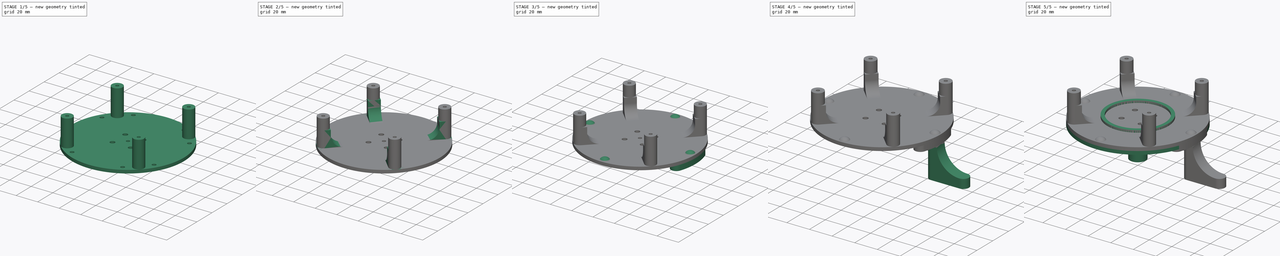
[diagram: build sequence overview — one tinted view per stage of 5, left to right]
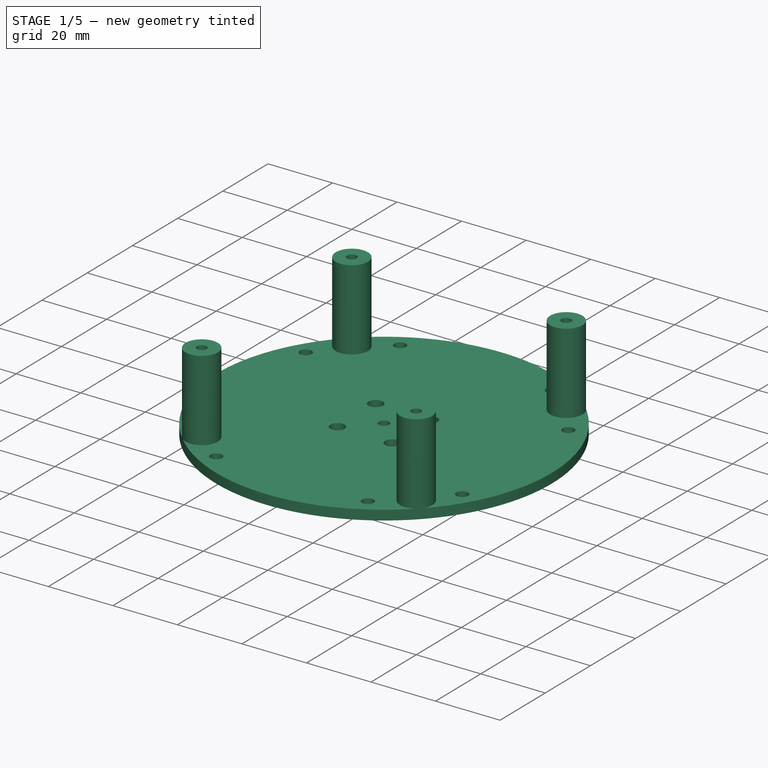
[diagram: stage 1 of 5 — iso view after this stage's code; geometry added in this stage tinted green]
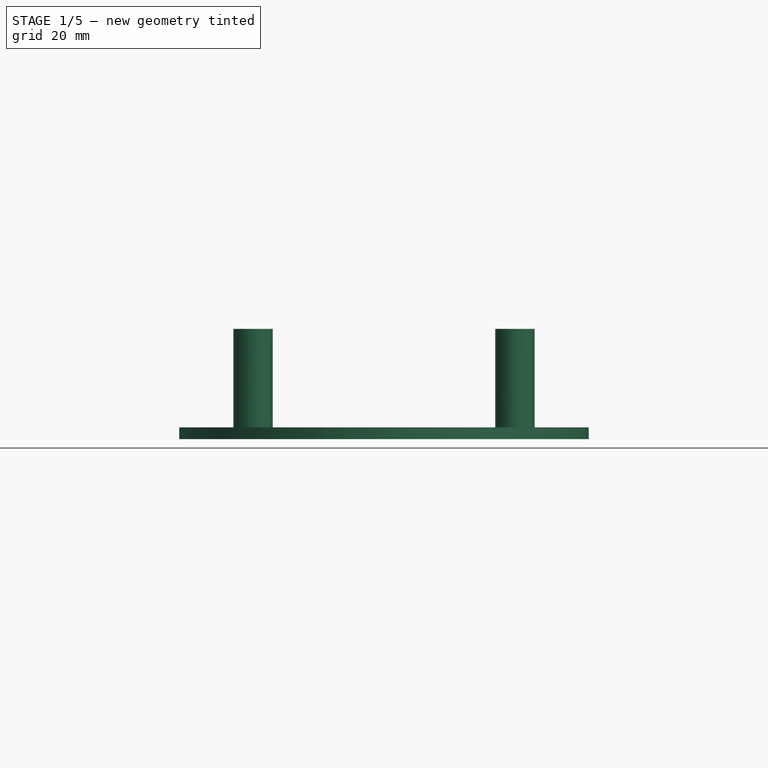
[diagram: stage 1 of 5 — front view after this stage's code; geometry added in this stage tinted green]
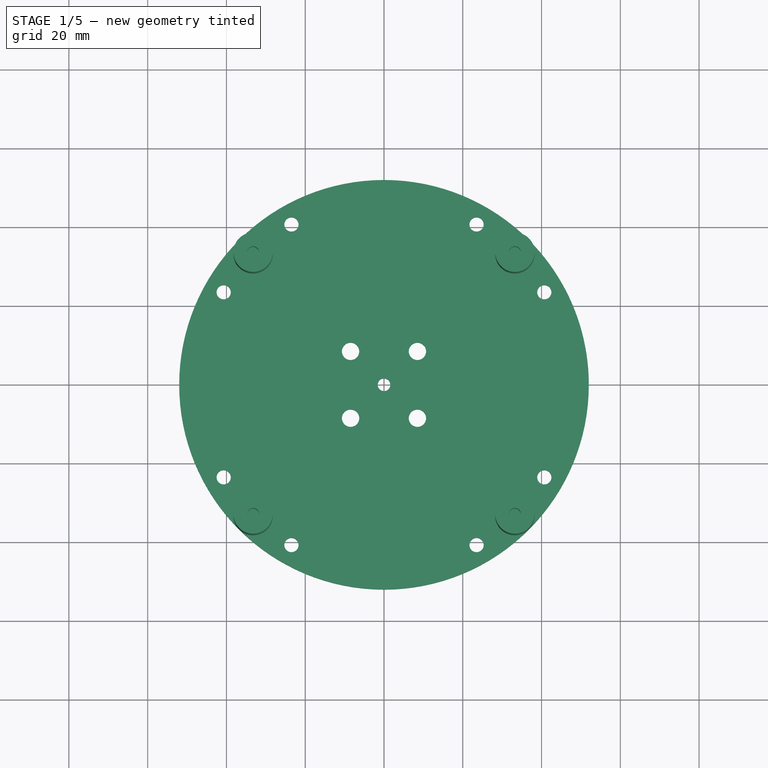
[diagram: stage 1 of 5 — top view after this stage's code; geometry added in this stage tinted green]
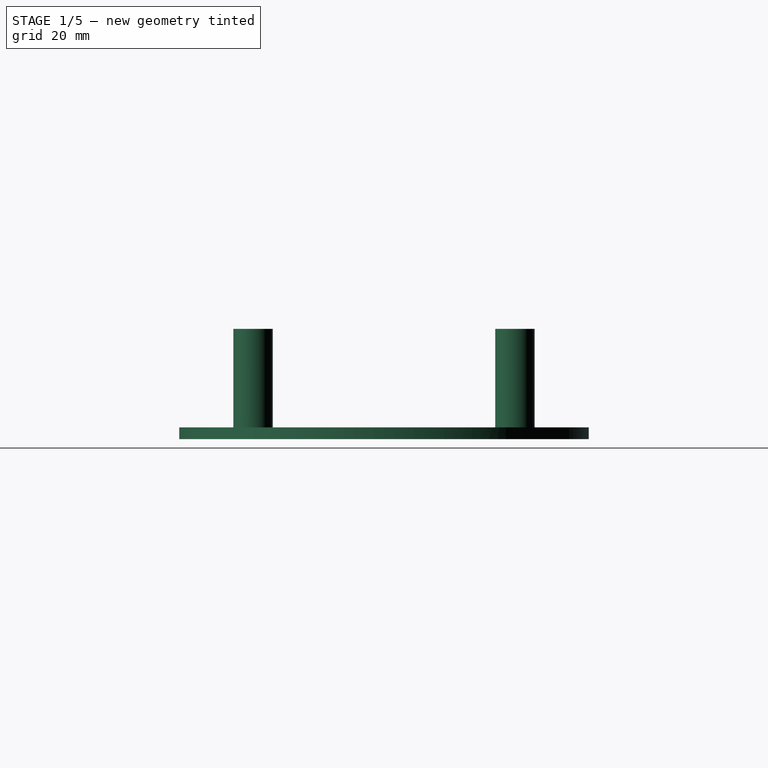
[diagram: stage 1 of 5 — right view after this stage's code; geometry added in this stage tinted green]
FCSTD DOCUMENT  (FreeCAD 1.0R39109 (Git))
Label: horiz
License: All rights reserved
LicenseURL: http://en.wikipedia.org/wiki/All_rights_reserved
objects: Sketcher::SketchObject×17, PartDesign::Pad×13, PartDesign::Body×5, PartDesign::Pocket×4, PartDesign::AdditiveSphere×4, App::Link×3
note: 102 computed .brp shape members not serialized (recipe doc carries the construction recipe); baked Part::Feature solids carry a one-line shape summary decoded from their .brp

FEATURE [PartDesign::Body] Body  label="Wheel"
  AllowCompound = false
  Group = -> [Pad001,Sketch001,Sketch,Pad,Sketch002,Pocket]
  Origin = -> Origin
  Placement = pos=(-1.14e-14,-1.2e-14,59) rot=(0,0,-1;3.14159rad)
  Tip = -> Pocket
FEATURE [Sketcher::SketchObject] Sketch003
  ArcFitTolerance = 1e-06
  AttachmentSupport = -> [XY_Plane001]
  FullyConstrained = true
  MakeInternals = false
  MapMode = 5
  sketch-geometry (11):
    g0: Circle CenterX=0 CenterY=0 CenterZ=0 NormalX=0 NormalY=0 NormalZ=1 AngleXU=0 Radius=52
    g1: Circle CenterX=0 CenterY=0 CenterZ=0 NormalX=0 NormalY=0 NormalZ=1 AngleXU=0 Radius=1.6
    g2: LineSegment [constr] StartX=-8.48528 StartY=8.48528 StartZ=0 EndX=-8.48528 EndY=-8.48528 EndZ=0
    g3: LineSegment [constr] StartX=-8.48528 StartY=-8.48528 StartZ=0 EndX=8.48528 EndY=-8.48528 EndZ=0
    g4: LineSegment [constr] StartX=8.48528 StartY=-8.48528 StartZ=0 EndX=8.48528 EndY=8.48528 EndZ=0
    g5: LineSegment [constr] StartX=8.48528 StartY=8.48528 StartZ=0 EndX=-8.48528 EndY=8.48528 EndZ=0
    g6: Circle [constr] CenterX=0 CenterY=0 CenterZ=0 NormalX=0 NormalY=0 NormalZ=1 AngleXU=0 Radius=12
    g7: Circle CenterX=8.48528 CenterY=8.48528 CenterZ=0 NormalX=0 NormalY=0 NormalZ=1 AngleXU=0 Radius=2.2
    g8: Circle CenterX=-8.48528 CenterY=8.48528 CenterZ=0 NormalX=0 NormalY=0 NormalZ=1 AngleXU=0 Radius=2.2
    g9: Circle CenterX=-8.48528 CenterY=-8.48528 CenterZ=0 NormalX=0 NormalY=0 NormalZ=1 AngleXU=0 Radius=2.2
    g10: Circle CenterX=8.48528 CenterY=-8.48528 CenterZ=0 NormalX=0 NormalY=0 NormalZ=1 AngleXU=0 Radius=2.2
  constraints (26):
    c: Coincident(g0,g-1)
    c: Radius(g0) = 52
    c: Coincident(g1,g0)
    c: Radius(g1) = 1.6
    c: Coincident(g2,g3)
    c: Coincident(g3,g4)
    c: Coincident(g4,g5)
    c: Coincident(g5,g2)
    c: Equal(g2,g3)
    c: Equal(g2,g4)
    c: Equal(g2,g5)
    c: PointOnObject(g2,g6)
    c: PointOnObject(g3,g6)
    c: PointOnObject(g4,g6)
    c: PointOnObject(g5,g6)
    c: Coincident(g6,g0)
    c: Radius(g6) = 12
    c: Parallel(g5,g-1)
    c: Coincident(g7,g4)
    c: Coincident(g8,g2)
    c: Coincident(g9,g2)
    c: Coincident(g10,g3)
    c: Equal(g10,g7)
    c: Equal(g7,g8)
    c: Equal(g8,g9)
    c: Radius(g7) = 2.2
FEATURE [PartDesign::Pad] Pad002
  Direction = (0,0,1)
  Length = 3
  Length2 = 10
  Profile = -> Sketch003
  ReferenceAxis = -> Sketch003 [N_Axis]
  Suppressed = false
  Type = 0
FEATURE [Sketcher::SketchObject] Sketch005
  ArcFitTolerance = 1e-06
  AttachmentSupport = -> [XY_Plane001]
  FullyConstrained = true
  MakeInternals = false
  MapMode = 5
  sketch-geometry (9):
    g0: LineSegment [constr] StartX=33.234 StartY=33.234 StartZ=0 EndX=-33.234 EndY=33.234 EndZ=0
    g1: LineSegment [constr] StartX=-33.234 StartY=33.234 StartZ=0 EndX=-33.234 EndY=-33.234 EndZ=0
    g2: LineSegment [constr] StartX=-33.234 StartY=-33.234 StartZ=0 EndX=33.234 EndY=-33.234 EndZ=0
    g3: LineSegment [constr] StartX=33.234 StartY=-33.234 StartZ=0 EndX=33.234 EndY=33.234 EndZ=0
    g4: Circle [constr] CenterX=-2e-16 CenterY=0 CenterZ=0 NormalX=0 NormalY=0 NormalZ=1 AngleXU=0 Radius=47
    g5: Circle CenterX=33.234 CenterY=33.234 CenterZ=0 NormalX=0 NormalY=0 NormalZ=1 AngleXU=0 Radius=5
    g6: Circle CenterX=-33.234 CenterY=33.234 CenterZ=0 NormalX=0 NormalY=0 NormalZ=1 AngleXU=0 Radius=5
    g7: Circle CenterX=-33.234 CenterY=-33.234 CenterZ=0 NormalX=0 NormalY=0 NormalZ=1 AngleXU=0 Radius=5
    g8: Circle CenterX=33.234 CenterY=-33.234 CenterZ=0 NormalX=0 NormalY=0 NormalZ=1 AngleXU=0 Radius=5
  constraints (22):
    c: Coincident(g0,g1)
    c: Coincident(g1,g2)
    c: Coincident(g2,g3)
    c: Coincident(g3,g0)
    c: Equal(g0,g1)
    c: Equal(g0,g2)
    c: Equal(g0,g3)
    c: PointOnObject(g0,g4)
    c: PointOnObject(g1,g4)
    c: PointOnObject(g2,g4)
    c: PointOnObject(g3,g4)
    c: Coincident(g4,g-1)
    c: Radius(g4) = 47
    c: Parallel(g0,g-1)
    c: Coincident(g5,g0)
    c: Coincident(g6,g0)
    c: Coincident(g7,g1)
    c: Coincident(g8,g2)
    c: Equal(g8,g5)
    c: Equal(g5,g6)
    c: Equal(g6,g7)
    c: Radius(g6) = 5
FEATURE [PartDesign::Pad] Pad004
  BaseFeature = -> Pad002
  Direction = (0,0,1)
  Length = 28
  Length2 = 10
  Profile = -> Sketch005
  ReferenceAxis = -> Sketch005 [N_Axis]
  Suppressed = false
  Type = 0
FEATURE [Sketcher::SketchObject] Sketch007
  ArcFitTolerance = 1e-06
  AttachmentOffset = pos=(0,0,28) rot=(0,0,1;0rad)
  AttachmentSupport = -> [XY_Plane001]
  FullyConstrained = true
  MakeInternals = false
  MapMode = 5
  Placement = pos=(0,0,28) rot=(0,0,1;0rad)
  sketch-geometry (9):
    g0: LineSegment [constr] StartX=-33.234 StartY=33.234 StartZ=0 EndX=-33.234 EndY=-33.234 EndZ=0
    g1: LineSegment [constr] StartX=-33.234 StartY=-33.234 StartZ=0 EndX=33.234 EndY=-33.234 EndZ=0
    g2: LineSegment [constr] StartX=33.234 StartY=-33.234 StartZ=0 EndX=33.234 EndY=33.234 EndZ=0
    g3: LineSegment [constr] StartX=33.234 StartY=33.234 StartZ=0 EndX=-33.234 EndY=33.234 EndZ=0
    g4: Circle [constr] CenterX=0 CenterY=0 CenterZ=0 NormalX=0 NormalY=0 NormalZ=1 AngleXU=0 Radius=47
    g5: Circle CenterX=33.234 CenterY=33.234 CenterZ=0 NormalX=0 NormalY=0 NormalZ=1 AngleXU=0 Radius=1.5
    g6: Circle CenterX=-33.234 CenterY=33.234 CenterZ=0 NormalX=0 NormalY=0 NormalZ=1 AngleXU=0 Radius=1.5
    g7: Circle CenterX=-33.234 CenterY=-33.234 CenterZ=0 NormalX=0 NormalY=0 NormalZ=1 AngleXU=0 Radius=1.5
    g8: Circle CenterX=33.234 CenterY=-33.234 CenterZ=0 NormalX=0 NormalY=0 NormalZ=1 AngleXU=0 Radius=1.5
  constraints (22):
    c: Coincident(g0,g1)
    c: Coincident(g1,g2)
    c: Coincident(g2,g3)
    c: Coincident(g3,g0)
    c: Equal(g0,g1)
    c: Equal(g0,g2)
    c: Equal(g0,g3)
    c: PointOnObject(g0,g4)
    c: PointOnObject(g1,g4)
    c: PointOnObject(g2,g4)
    c: PointOnObject(g3,g4)
    c: Coincident(g4,g-1)
    c: Radius(g4) = 47
    c: Parallel(g3,g-1)
    c: Coincident(g5,g2)
    c: Coincident(g6,g0)
    c: Coincident(g7,g0)
    c: Coincident(g8,g1)
    c: Equal(g8,g5)
    c: Equal(g5,g6)
    c: Equal(g6,g7)
    c: Radius(g6) = 1.5
FEATURE [PartDesign::Pocket] Pocket002
  BaseFeature = -> Pad004
  Direction = (0,0,-1)
  Length = 10
  Length2 = 5
  Profile = -> Sketch007
  ReferenceAxis = -> Sketch007 [N_Axis]
  Suppressed = false
  Type = 0
FEATURE [Sketcher::SketchObject] Sketch011
  ArcFitTolerance = 1e-06
  AttachmentSupport = -> [XY_Plane001]
  FullyConstrained = true
  MakeInternals = false
  MapMode = 5
  sketch-geometry (17):
    g0: LineSegment [constr] StartX=-23.5 StartY=-40.7032 StartZ=0 EndX=40.7032 EndY=-23.5 EndZ=0
    g1: LineSegment [constr] StartX=40.7032 StartY=-23.5 StartZ=0 EndX=23.5 EndY=40.7032 EndZ=0
    g2: LineSegment [constr] StartX=23.5 StartY=40.7032 StartZ=0 EndX=-40.7032 EndY=23.5 EndZ=0
    g3: LineSegment [constr] StartX=-40.7032 StartY=23.5 StartZ=0 EndX=-23.5 EndY=-40.7032 EndZ=0
    g4: Circle [constr] CenterX=0 CenterY=0 CenterZ=0 NormalX=0 NormalY=0 NormalZ=1 AngleXU=0 Radius=47
    g5: Circle CenterX=23.5 CenterY=40.7032 CenterZ=0 NormalX=0 NormalY=0 NormalZ=1 AngleXU=0 Radius=1.8
    g6: Circle CenterX=-40.7032 CenterY=23.5 CenterZ=0 NormalX=0 NormalY=0 NormalZ=1 AngleXU=0 Radius=1.8
    g7: Circle CenterX=-23.5 CenterY=-40.7032 CenterZ=0 NormalX=0 NormalY=0 NormalZ=1 AngleXU=0 Radius=1.8
    g8: Circle CenterX=40.7032 CenterY=-23.5 CenterZ=0 NormalX=0 NormalY=0 NormalZ=1 AngleXU=0 Radius=1.8
    g9: LineSegment [constr] StartX=-23.5 StartY=40.7032 StartZ=0 EndX=40.7032 EndY=23.5 EndZ=0
    g10: LineSegment [constr] StartX=40.7032 StartY=23.5 StartZ=0 EndX=23.5 EndY=-40.7032 EndZ=0
    g11: LineSegment [constr] StartX=23.5 StartY=-40.7032 StartZ=0 EndX=-40.7032 EndY=-23.5 EndZ=0
    g12: LineSegment [constr] StartX=-40.7032 StartY=-23.5 StartZ=0 EndX=-23.5 EndY=40.7032 EndZ=0
    g13: Circle CenterX=-23.5 CenterY=40.7032 CenterZ=0 NormalX=0 NormalY=0 NormalZ=1 AngleXU=0 Radius=1.8
    g14: Circle CenterX=40.7032 CenterY=23.5 CenterZ=0 NormalX=0 NormalY=0 NormalZ=1 AngleXU=0 Radius=1.8
    g15: Circle CenterX=23.5 CenterY=-40.7032 CenterZ=0 NormalX=0 NormalY=0 NormalZ=1 AngleXU=0 Radius=1.8
    g16: Circle CenterX=-40.7032 CenterY=-23.5 CenterZ=0 NormalX=0 NormalY=0 NormalZ=1 AngleXU=0 Radius=1.8
  constraints (42):
    c: Coincident(g0,g1)
    c: Coincident(g1,g2)
    c: Coincident(g2,g3)
    c: Coincident(g3,g0)
    c: Equal(g0,g1)
    c: Equal(g0,g2)
    c: Equal(g0,g3)
    c: PointOnObject(g0,g4)
    c: PointOnObject(g1,g4)
    c: PointOnObject(g2,g4)
    c: PointOnObject(g3,g4)
    c: Coincident(g4,g-1)
    c: Radius(g4) = 47
    c: Coincident(g5,g1)
    c: Coincident(g6,g2)
    c: Coincident(g7,g0)
    c: Coincident(g8,g0)
    c: Equal(g8,g7)
    c: Equal(g7,g6)
    c: Equal(g6,g5)
    c: Radius(g5) = 1.8
    c: Angle(g-1,g0) = 0.261799
    c: PointOnObject(g9,g4)
    c: PointOnObject(g9,g4)
    c: Coincident(g9,g10)
    c: PointOnObject(g10,g4)
    c: Coincident(g10,g11)
    c: PointOnObject(g11,g4)
    c: Coincident(g11,g12)
    c: Coincident(g12,g9)
    c: Equal(g9,g10)
    c: Angle(g11,g12) = 1.5708
    c: Angle(g10,g11) = 1.5708
    c: Angle(g10,g-2) = 0.261799
    c: Coincident(g13,g9)
    c: Coincident(g14,g9)
    c: Coincident(g15,g10)
    c: Coincident(g16,g11)
    c: Equal(g16,g15)
    c: Equal(g15,g14)
    c: Equal(g14,g13)
    c: Equal(g13,g5)
FEATURE [PartDesign::Pocket] Pocket004
  BaseFeature = -> Pocket002
  Direction = (0,0,-1)
  Length = 5
  Length2 = 5
  Profile = -> Sketch011
  ReferenceAxis = -> Sketch011 [N_Axis]
  Reversed = true
  Suppressed = false
  Type = 0
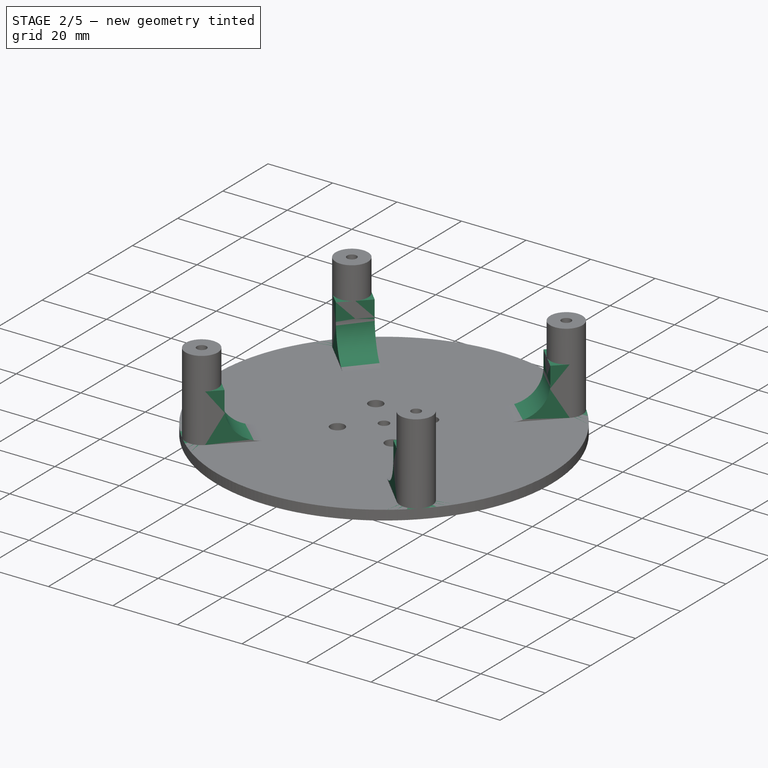
[diagram: stage 2 of 5 — iso view after this stage's code; geometry added in this stage tinted green]
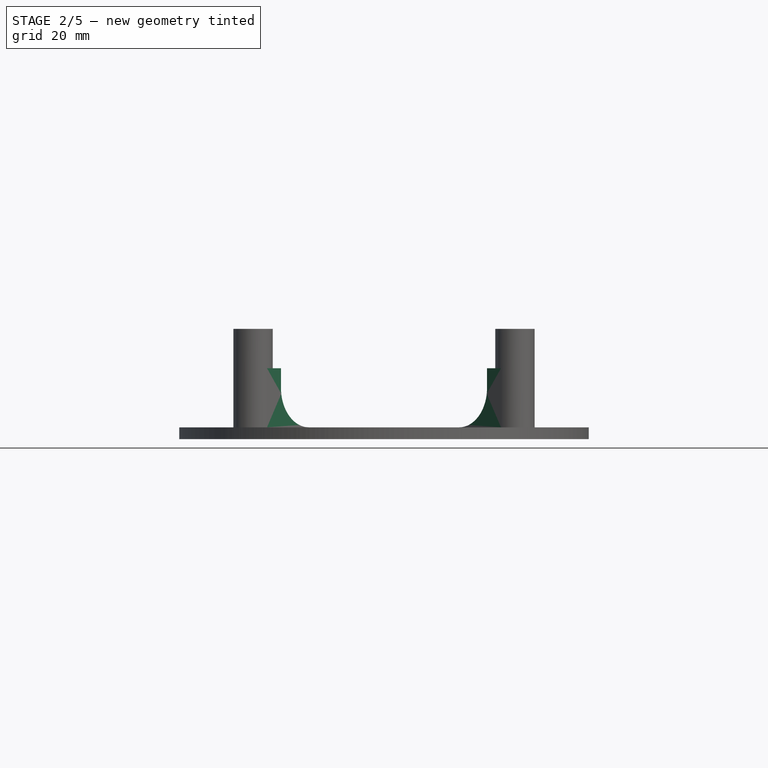
[diagram: stage 2 of 5 — front view after this stage's code; geometry added in this stage tinted green]
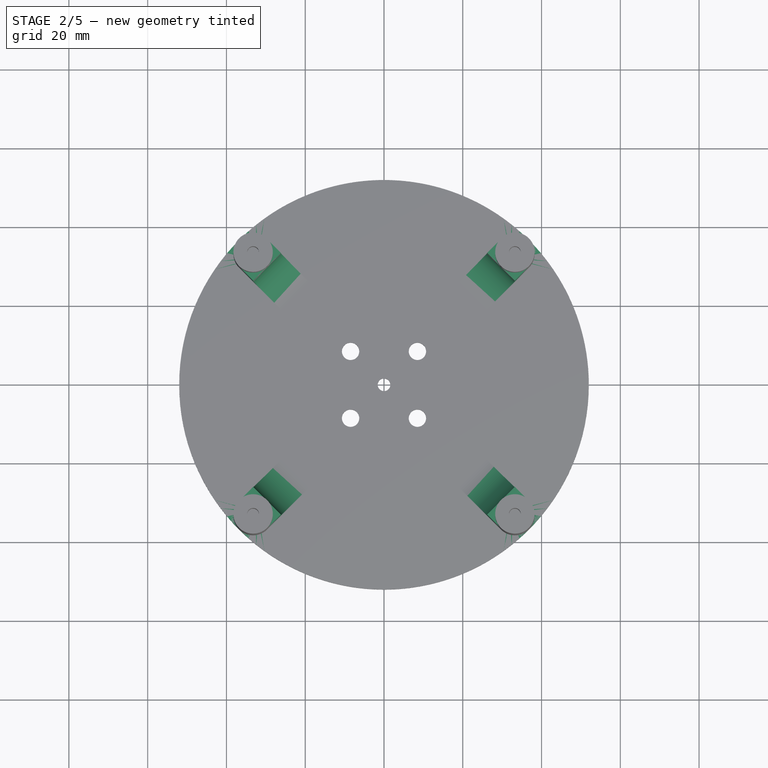
[diagram: stage 2 of 5 — top view after this stage's code; geometry added in this stage tinted green]
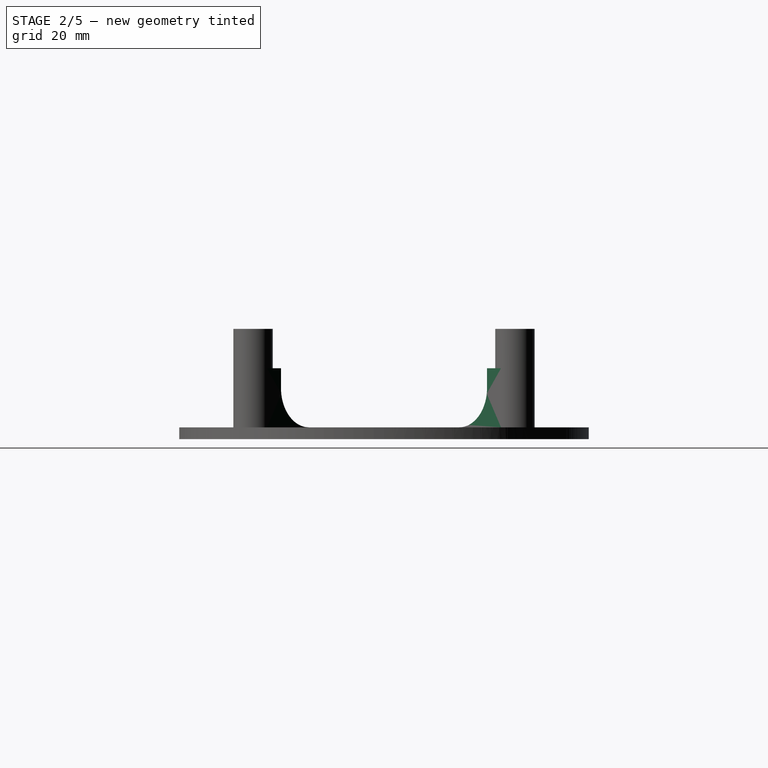
[diagram: stage 2 of 5 — right view after this stage's code; geometry added in this stage tinted green]
FEATURE [Sketcher::SketchObject] Sketch004
  ArcFitTolerance = 1e-06
  AttachmentSupport = -> [XY_Plane002]
  FullyConstrained = true
  MakeInternals = false
  MapMode = 5
  sketch-geometry (11):
    g0: Circle CenterX=0 CenterY=0 CenterZ=0 NormalX=0 NormalY=0 NormalZ=1 AngleXU=0 Radius=52
    g1: Circle CenterX=0 CenterY=0 CenterZ=0 NormalX=0 NormalY=0 NormalZ=1 AngleXU=0 Radius=1.6
    g2: LineSegment [constr] StartX=-8.48528 StartY=8.48528 StartZ=0 EndX=-8.48528 EndY=-8.48528 EndZ=0
    g3: LineSegment [constr] StartX=-8.48528 StartY=-8.48528 StartZ=0 EndX=8.48528 EndY=-8.48528 EndZ=0
    g4: LineSegment [constr] StartX=8.48528 StartY=-8.48528 StartZ=0 EndX=8.48528 EndY=8.48528 EndZ=0
    g5: LineSegment [constr] StartX=8.48528 StartY=8.48528 StartZ=0 EndX=-8.48528 EndY=8.48528 EndZ=0
    g6: Circle [constr] CenterX=0 CenterY=0 CenterZ=0 NormalX=0 NormalY=0 NormalZ=1 AngleXU=0 Radius=12
    g7: Circle CenterX=8.48528 CenterY=8.48528 CenterZ=0 NormalX=0 NormalY=0 NormalZ=1 AngleXU=0 Radius=2.2
    g8: Circle CenterX=-8.48528 CenterY=8.48528 CenterZ=0 NormalX=0 NormalY=0 NormalZ=1 AngleXU=0 Radius=2.2
    g9: Circle CenterX=-8.48528 CenterY=-8.48528 CenterZ=0 NormalX=0 NormalY=0 NormalZ=1 AngleXU=0 Radius=2.2
    g10: Circle CenterX=8.48528 CenterY=-8.48528 CenterZ=0 NormalX=0 NormalY=0 NormalZ=1 AngleXU=0 Radius=2.2
  constraints (26):
    c: Coincident(g0,g-1)
    c: Radius(g0) = 52
    c: Coincident(g1,g0)
    c: Radius(g1) = 1.6
    c: Coincident(g2,g3)
    c: Coincident(g3,g4)
    c: Coincident(g4,g5)
    c: Coincident(g5,g2)
    c: Equal(g2,g3)
    c: Equal(g2,g4)
    c: Equal(g2,g5)
    c: PointOnObject(g2,g6)
    c: PointOnObject(g3,g6)
    c: PointOnObject(g4,g6)
    c: PointOnObject(g5,g6)
    c: Coincident(g6,g0)
    c: Radius(g6) = 12
    c: Parallel(g5,g-1)
    c: Coincident(g7,g4)
    c: Coincident(g8,g2)
    c: Coincident(g9,g2)
    c: Coincident(g10,g3)
    c: Equal(g10,g7)
    c: Equal(g7,g8)
    c: Equal(g8,g9)
    c: Radius(g7) = 2.2
FEATURE [PartDesign::Pad] Pad003
  Direction = (0,0,1)
  Length = 3
  Length2 = 10
  Profile = -> Sketch004
  ReferenceAxis = -> Sketch004 [N_Axis]
  Suppressed = false
  Type = 0
FEATURE [Sketcher::SketchObject] Sketch006
  ArcFitTolerance = 1e-06
  AttachmentSupport = -> [XY_Plane002]
  FullyConstrained = true
  MakeInternals = false
  MapMode = 5
  sketch-geometry (9):
    g0: LineSegment [constr] StartX=33.234 StartY=-33.234 StartZ=0 EndX=33.234 EndY=33.234 EndZ=0
    g1: LineSegment [constr] StartX=33.234 StartY=33.234 StartZ=0 EndX=-33.234 EndY=33.234 EndZ=0
    g2: LineSegment [constr] StartX=-33.234 StartY=33.234 StartZ=0 EndX=-33.234 EndY=-33.234 EndZ=0
    g3: LineSegment [constr] StartX=-33.234 StartY=-33.234 StartZ=0 EndX=33.234 EndY=-33.234 EndZ=0
    g4: Circle [constr] CenterX=0 CenterY=0 CenterZ=0 NormalX=0 NormalY=0 NormalZ=1 AngleXU=0 Radius=47
    g5: Circle CenterX=-33.234 CenterY=33.234 CenterZ=0 NormalX=0 NormalY=0 NormalZ=1 AngleXU=0 Radius=1.8
    g6: Circle CenterX=-33.234 CenterY=-33.234 CenterZ=0 NormalX=0 NormalY=0 NormalZ=1 AngleXU=0 Radius=1.8
    g7: Circle CenterX=33.234 CenterY=-33.234 CenterZ=0 NormalX=0 NormalY=0 NormalZ=1 AngleXU=0 Radius=1.8
    g8: Circle CenterX=33.234 CenterY=33.234 CenterZ=0 NormalX=0 NormalY=0 NormalZ=1 AngleXU=0 Radius=1.8
  constraints (22):
    c: Coincident(g0,g1)
    c: Coincident(g1,g2)
    c: Coincident(g2,g3)
    c: Coincident(g3,g0)
    c: Equal(g0,g1)
    c: Equal(g0,g2)
    c: Equal(g0,g3)
    c: PointOnObject(g0,g4)
    c: PointOnObject(g1,g4)
    c: PointOnObject(g2,g4)
    c: PointOnObject(g3,g4)
    c: Coincident(g4,g-1)
    c: Radius(g4) = 47
    c: Parallel(g1,g-1)
    c: Coincident(g5,g1)
    c: Coincident(g6,g2)
    c: Coincident(g7,g0)
    c: Coincident(g8,g0)
    c: Equal(g8,g7)
    c: Equal(g7,g6)
    c: Equal(g6,g5)
    c: Radius(g5) = 1.8
FEATURE [PartDesign::Pocket] Pocket001
  BaseFeature = -> Pad003
  Direction = (0,0,-1)
  Length = 5
  Length2 = 5
  Midplane = true
  Profile = -> Sketch006
  ReferenceAxis = -> Sketch006 [N_Axis]
  Suppressed = false
  Type = 1
FEATURE [PartDesign::Body] Body002  label="Top"
  AllowCompound = false
  Group = -> [Sketch004,Pad003,Sketch006,Pocket001,Sphere,Sphere001,Sphere002,Sphere003]
  Origin = -> Origin002
  Placement = pos=(-6.2e-15,-9.9e-15,51) rot=(0,0,-1;3.14159rad)
  Tip = -> Sphere003
FEATURE [Sketcher::SketchObject] Sketch018
  ArcFitTolerance = 1e-06
  AttachmentOffset = pos=(0,0,0) rot=(0,1,0;0.785398rad)
  AttachmentSupport = -> [YZ_Plane001]
  FullyConstrained = true
  MakeInternals = false
  MapMode = 5
  Placement = pos=(0,0,0) rot=(0.281085,0.678598,0.678598;2.59356rad)
  sketch-geometry (10):
    g0: LineSegment StartX=-47 StartY=18 StartZ=0 EndX=-47 EndY=3 EndZ=0
    g1: LineSegment StartX=-47 StartY=3 StartZ=0 EndX=-32 EndY=3 EndZ=0
    g2: LineSegment StartX=-42 StartY=13 StartZ=0 EndX=-42 EndY=18 EndZ=0
    g3: LineSegment StartX=-42 StartY=18 StartZ=0 EndX=-47 EndY=18 EndZ=0
    g4: ArcOfCircle CenterX=-32 CenterY=13 CenterZ=0 NormalX=0 NormalY=0 NormalZ=1 AngleXU=0 Radius=10 StartAngle=3.14159 EndAngle=4.71239
    g5: LineSegment StartX=47 StartY=18 StartZ=0 EndX=47 EndY=3 EndZ=0
    g6: LineSegment StartX=47 StartY=3 StartZ=0 EndX=32 EndY=3 EndZ=0
    g7: LineSegment StartX=42 StartY=13 StartZ=0 EndX=42 EndY=18 EndZ=0
    g8: LineSegment StartX=42 StartY=18 StartZ=0 EndX=47 EndY=18 EndZ=0
    g9: ArcOfCircle CenterX=32 CenterY=13 CenterZ=0 NormalX=0 NormalY=0 NormalZ=1 AngleXU=0 Radius=10 StartAngle=4.71239 EndAngle=6.28319
  constraints (27):
    c: Coincident(g0,g1)
    c: Coincident(g2,g3)
    c: Coincident(g3,g0)
    c: Vertical(g0)
    c: Vertical(g2)
    c: Horizontal(g1)
    c: Horizontal(g3)
    c: Coincident(g4,g2)
    c: Coincident(g4,g1)
    c: DistanceX(g1,g4) = 0
    c: DistanceY(g0) = 3
    c: DistanceX(g0,g-1) = 47
    c: DistanceX(g3,g3) = 5
    c: DistanceY(g0,g0) = 15
    c: DistanceY(g2,g4) = 0
    c: Radius(g4) = 10
    c: Symmetric(g0,g5,g-2)
    c: Symmetric(g0,g5,g-2)
    c: Symmetric(g1,g6,g-2)
    c: Symmetric(g1,g6,g-2)
    c: Symmetric(g2,g7,g-2)
    c: Symmetric(g2,g7,g-2)
    c: Symmetric(g3,g8,g-2)
    c: Symmetric(g3,g8,g-2)
    c: Equal(g4,g9)
    c: Symmetric(g4,g9,g-2)
    c: Symmetric(g4,g9,g-2)
FEATURE [PartDesign::Pad] Pad011
  BaseFeature = -> Pocket004
  Direction = (0.707107,0.707107,0)
  Length = 10
  Length2 = 10
  Midplane = true
  Profile = -> Sketch018
  ReferenceAxis = -> Sketch018 [N_Axis]
  Suppressed = false
  Type = 0
FEATURE [Sketcher::SketchObject] Sketch019
  ArcFitTolerance = 1e-06
  AttachmentOffset = pos=(0,0,0) rot=(0,1,0;-0.785398rad)
  AttachmentSupport = -> [YZ_Plane001]
  FullyConstrained = true
  MakeInternals = false
  MapMode = 5
  Placement = pos=(0,0,0) rot=(-0.862856,-0.357407,-0.357407;4.56541rad)
  sketch-geometry (10):
    g0: LineSegment StartX=-47 StartY=18 StartZ=0 EndX=-47 EndY=3 EndZ=0
    g1: LineSegment StartX=-47 StartY=3 StartZ=0 EndX=-32 EndY=3 EndZ=0
    g2: LineSegment StartX=-42 StartY=13 StartZ=0 EndX=-42 EndY=18 EndZ=0
    g3: LineSegment StartX=-42 StartY=18 StartZ=0 EndX=-47 EndY=18 EndZ=0
    g4: ArcOfCircle CenterX=-32 CenterY=13 CenterZ=0 NormalX=0 NormalY=0 NormalZ=1 AngleXU=0 Radius=10 StartAngle=3.14159 EndAngle=4.71239
    g5: LineSegment StartX=47 StartY=18 StartZ=0 EndX=47 EndY=3 EndZ=0
    g6: LineSegment StartX=47 StartY=3 StartZ=0 EndX=32 EndY=3 EndZ=0
    g7: LineSegment StartX=42 StartY=13 StartZ=0 EndX=42 EndY=18 EndZ=0
    g8: LineSegment StartX=42 StartY=18 StartZ=0 EndX=47 EndY=18 EndZ=0
    g9: ArcOfCircle CenterX=32 CenterY=13 CenterZ=0 NormalX=0 NormalY=0 NormalZ=1 AngleXU=0 Radius=10 StartAngle=4.71239 EndAngle=6.28319
  constraints (27):
    c: Coincident(g0,g1)
    c: Coincident(g2,g3)
    c: Coincident(g3,g0)
    c: Vertical(g0)
    c: Vertical(g2)
    c: Horizontal(g1)
    c: Horizontal(g3)
    c: Coincident(g4,g2)
    c: Coincident(g4,g1)
    c: DistanceX(g1,g4) = 0
    c: DistanceY(g0) = 3
    c: DistanceX(g0,g-1) = 47
    c: DistanceX(g3,g3) = 5
    c: DistanceY(g0,g0) = 15
    c: DistanceY(g2,g4) = 0
    c: Radius(g4) = 10
    c: Symmetric(g0,g5,g-2)
    c: Symmetric(g0,g5,g-2)
    c: Symmetric(g1,g6,g-2)
    c: Symmetric(g1,g6,g-2)
    c: Symmetric(g2,g7,g-2)
    c: Symmetric(g2,g7,g-2)
    c: Symmetric(g3,g8,g-2)
    c: Symmetric(g3,g8,g-2)
    c: Equal(g4,g9)
    c: Symmetric(g4,g9,g-2)
    c: Symmetric(g4,g9,g-2)
FEATURE [PartDesign::Pad] Pad012
  BaseFeature = -> Pad011
  Direction = (0.707107,-0.707107,0)
  Length = 10
  Length2 = 10
  Midplane = true
  Profile = -> Sketch019
  ReferenceAxis = -> Sketch019 [N_Axis]
  Suppressed = false
  Type = 0
FEATURE [PartDesign::Body] Body001  label="Mid"
  AllowCompound = false
  Group = -> [Sketch003,Pad002,Sketch005,Pad004,Sketch007,Pocket002,Sketch011,Pocket004,Sketch018,Pad011,Sketch019,Pad012]
  Origin = -> Origin001
  Placement = pos=(-2.8e-15,-2.2e-15,23) rot=(0,0,-1;3.14159rad)
  Tip = -> Pad012
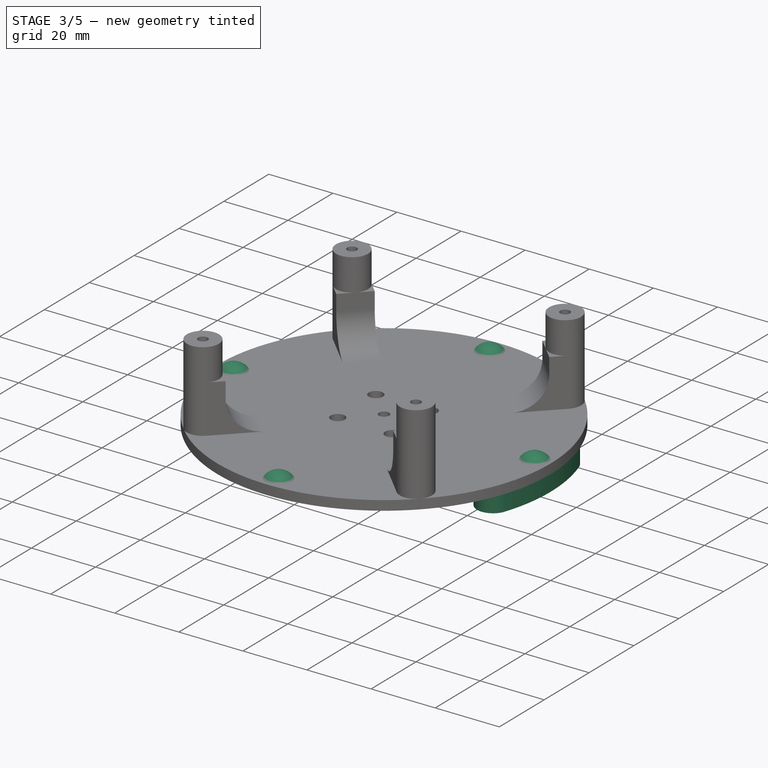
[diagram: stage 3 of 5 — iso view after this stage's code; geometry added in this stage tinted green]
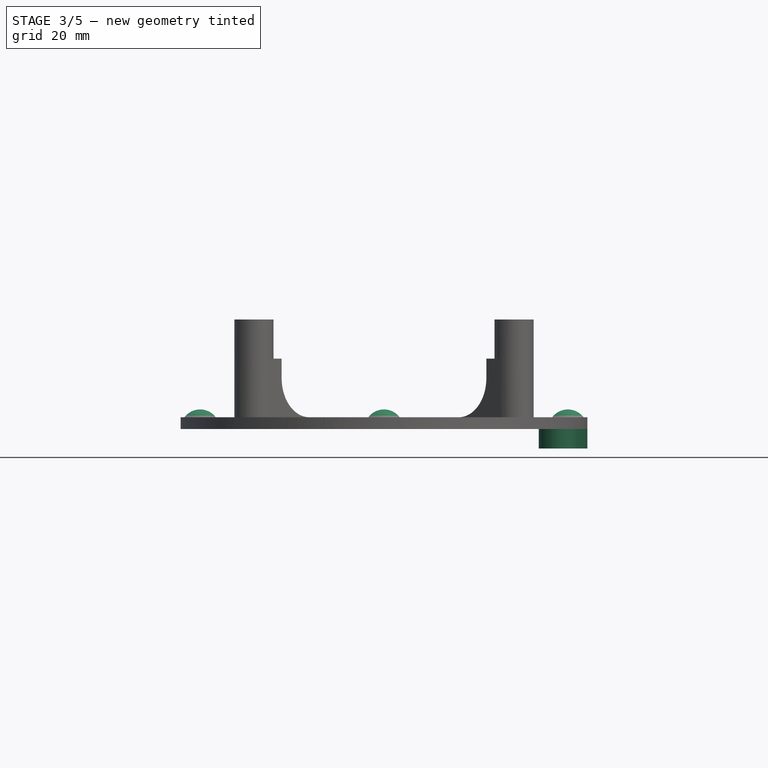
[diagram: stage 3 of 5 — front view after this stage's code; geometry added in this stage tinted green]
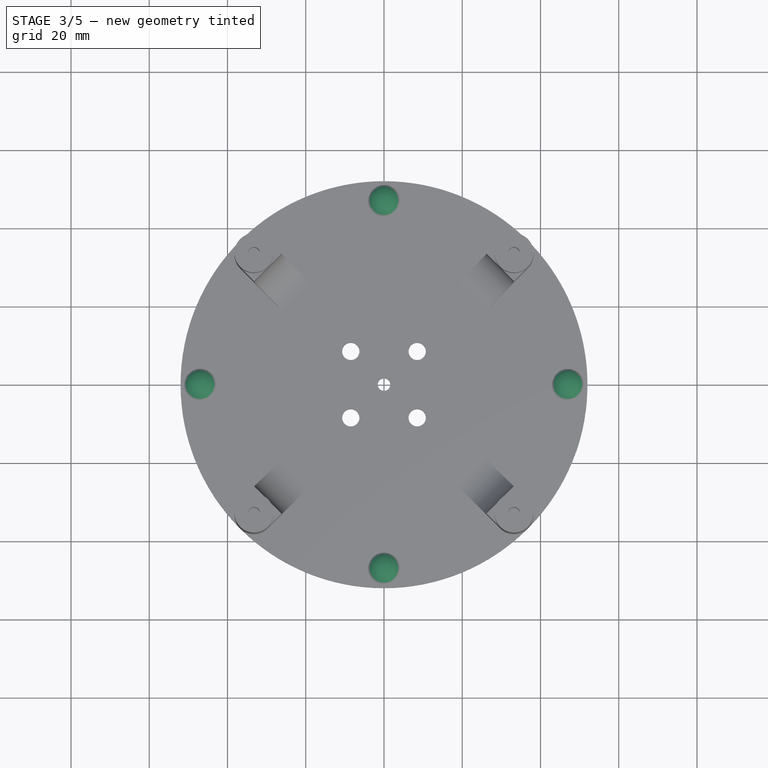
[diagram: stage 3 of 5 — top view after this stage's code; geometry added in this stage tinted green]
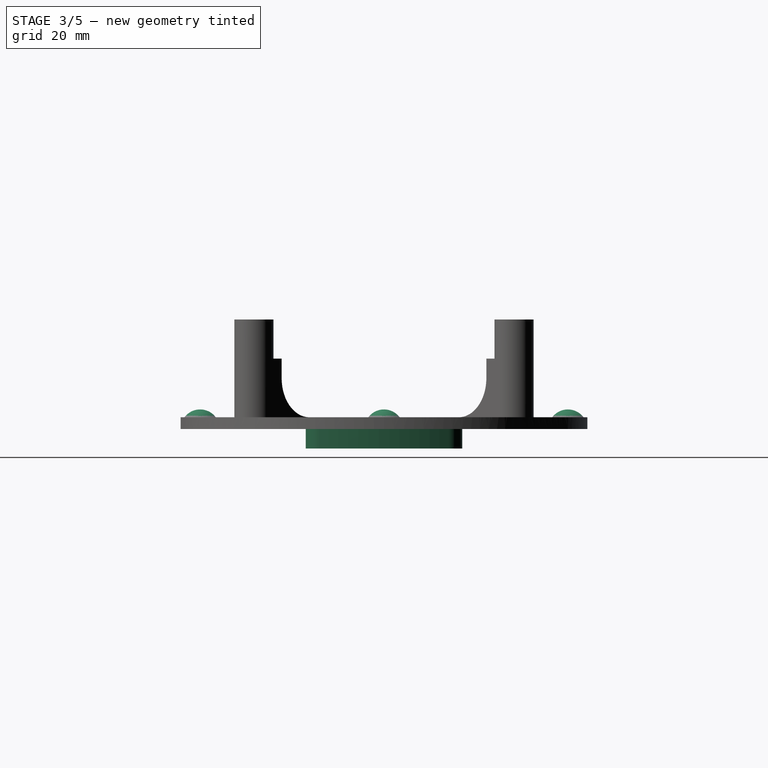
[diagram: stage 3 of 5 — right view after this stage's code; geometry added in this stage tinted green]
FEATURE [PartDesign::Body] Body003  label="Center"
  AllowCompound = false
  Group = -> [Sketch012,Pad005,Sketch013,Pad006]
  Origin = -> Origin003
  Placement = pos=(0,0,20) rot=(0,0,1;0rad)
  Tip = -> Pad006
FEATURE [Sketcher::SketchObject] Sketch014
  ArcFitTolerance = 1e-06
  AttachmentSupport = -> [XY_Plane004]
  FullyConstrained = true
  MakeInternals = false
  MapMode = 5
  sketch-geometry (9):
    g0: ArcOfCircle CenterX=0 CenterY=-1.8e-15 CenterZ=0 NormalX=0 NormalY=0 NormalZ=1 AngleXU=0 Radius=52 StartAngle=5.95835 EndAngle=6.60802
    g1: ArcOfCircle CenterX=0 CenterY=-1.8e-15 CenterZ=0 NormalX=0 NormalY=0 NormalZ=1 AngleXU=0 Radius=42 StartAngle=5.95835 EndAngle=6.60802
    g2: ArcOfCircle CenterX=44.5421 CenterY=15 CenterZ=0 NormalX=0 NormalY=0 NormalZ=1 AngleXU=0 Radius=5 StartAngle=0.324831 EndAngle=3.46643
    g3: ArcOfCircle CenterX=44.5421 CenterY=-15 CenterZ=0 NormalX=0 NormalY=0 NormalZ=1 AngleXU=0 Radius=5 StartAngle=2.81676 EndAngle=5.95836
    g4: LineSegment [constr] StartX=52 StartY=0 StartZ=0 EndX=0 EndY=-1.8e-15 EndZ=0
    g5: LineSegment [constr] StartX=45.3985 StartY=12.1645 StartZ=0 EndX=0 EndY=-1.8e-15 EndZ=0
    g6: LineSegment [constr] StartX=0 StartY=-1.8e-15 StartZ=0 EndX=45.3985 EndY=-12.1645 EndZ=0
    g7: Circle CenterX=45.3985 CenterY=12.1645 CenterZ=0 NormalX=0 NormalY=0 NormalZ=1 AngleXU=0 Radius=1.5
    g8: Circle CenterX=45.3985 CenterY=-12.1645 CenterZ=0 NormalX=0 NormalY=0 NormalZ=1 AngleXU=0 Radius=1.5
  constraints (24):
    c: Coincident(g0,g-1)
    c: Coincident(g1,g0)
    c: Radius(g0) = 52
    c: Radius(g1) = 42
    c: Tangent(g2,g0) = -1.5708
    c: Tangent(g3,g1) = 1.5708
    c: PointOnObject(g4,g0)
    c: Coincident(g4,g0)
    c: Angle(g-1,g4) = 0
    c: Symmetric(g2,g3,g4)
    c: Distance(g3,g2) = 30
    c: Coincident(g2,g1)
    c: Coincident(g3,g0)
    c: Radius(g2) = 5
    c: Coincident(g5,g0)
    c: Coincident(g6,g0)
    c: Distance(g5) = 47
    c: Distance(g6) = 47
    c: Coincident(g7,g5)
    c: Coincident(g8,g6)
    c: Equal(g8,g7)
    c: Radius(g7) = 1.5
    c: Angle(g4,g5) = 0.261799
    c: Angle(g6,g4) = 0.261799
FEATURE [PartDesign::Pad] Pad007
  Direction = (0,0,1)
  Length = 5
  Length2 = 10
  Profile = -> Sketch014
  ReferenceAxis = -> Sketch014 [N_Axis]
  Reversed = true
  Suppressed = false
  Type = 0
FEATURE [PartDesign::Body] Body004  label="Leg1"
  AllowCompound = false
  Group = -> [Sketch014,Pad007,Sketch015,Pad008,Sketch016,Pad009,Sketch017,Pad010]
  Origin = -> Origin004
  Placement = pos=(0,0,23) rot=(0,0,1;0.785398rad)
  Tip = -> Pad010
FEATURE [App::Link] Link  label="Leg2"
  LinkPlacement = pos=(-3.91e-14,-2.74181e-06,23) rot=(0,0,-1;0.785398rad)
  LinkedObject = -> Body004
  Placement = pos=(-3.91e-14,-2.74181e-06,23) rot=(0,0,-1;0.785398rad)
FEATURE [App::Link] Link001  label="Leg3"
  LinkPlacement = pos=(-1.93876e-06,1.93876e-06,23) rot=(0,0,1;3.92699rad)
  LinkedObject = -> Body004
  Placement = pos=(-1.93876e-06,1.93876e-06,23) rot=(0,0,1;3.92699rad)
FEATURE [App::Link] Link002  label="Leg4"
  LinkPlacement = pos=(1.93876e-06,1.93876e-06,23) rot=(0,0,1;2.3562rad)
  LinkedObject = -> Body004
  Placement = pos=(1.93876e-06,1.93876e-06,23) rot=(0,0,1;2.3562rad)
FEATURE [PartDesign::AdditiveSphere] Sphere
  Angle1 = 0
  Angle2 = 90
  Angle3 = 360
  AttacherType = Attacher::AttachEngine3D
  AttachmentOffset = pos=(0,47,0) rot=(0,0,1;0rad)
  AttachmentSupport = -> [XY_Plane002]
  BaseFeature = -> Pocket001
  MapMode = 5
  Placement = pos=(0,47,0) rot=(0,0,1;0rad)
  Radius = 5
  Suppressed = false
FEATURE [PartDesign::AdditiveSphere] Sphere001
  Angle1 = 0
  Angle2 = 90
  Angle3 = 360
  AttacherType = Attacher::AttachEngine3D
  AttachmentOffset = pos=(0,-47,0) rot=(0,0,1;0rad)
  AttachmentSupport = -> [XY_Plane002]
  BaseFeature = -> Sphere
  MapMode = 5
  Placement = pos=(0,-47,0) rot=(0,0,1;0rad)
  Radius = 5
  Suppressed = false
FEATURE [PartDesign::AdditiveSphere] Sphere002
  Angle1 = 0
  Angle2 = 90
  Angle3 = 360
  AttacherType = Attacher::AttachEngine3D
  AttachmentOffset = pos=(47,0,0) rot=(0,0,1;0rad)
  AttachmentSupport = -> [XY_Plane002]
  BaseFeature = -> Sphere001
  MapMode = 5
  Placement = pos=(47,0,0) rot=(0,0,1;0rad)
  Radius = 5
  Suppressed = false
FEATURE [PartDesign::AdditiveSphere] Sphere003
  Angle1 = 0
  Angle2 = 90
  Angle3 = 360
  AttacherType = Attacher::AttachEngine3D
  AttachmentOffset = pos=(-47,0,0) rot=(0,0,1;0rad)
  AttachmentSupport = -> [XY_Plane002]
  BaseFeature = -> Sphere002
  MapMode = 5
  Placement = pos=(-47,0,0) rot=(0,0,1;0rad)
  Radius = 5
  Suppressed = false
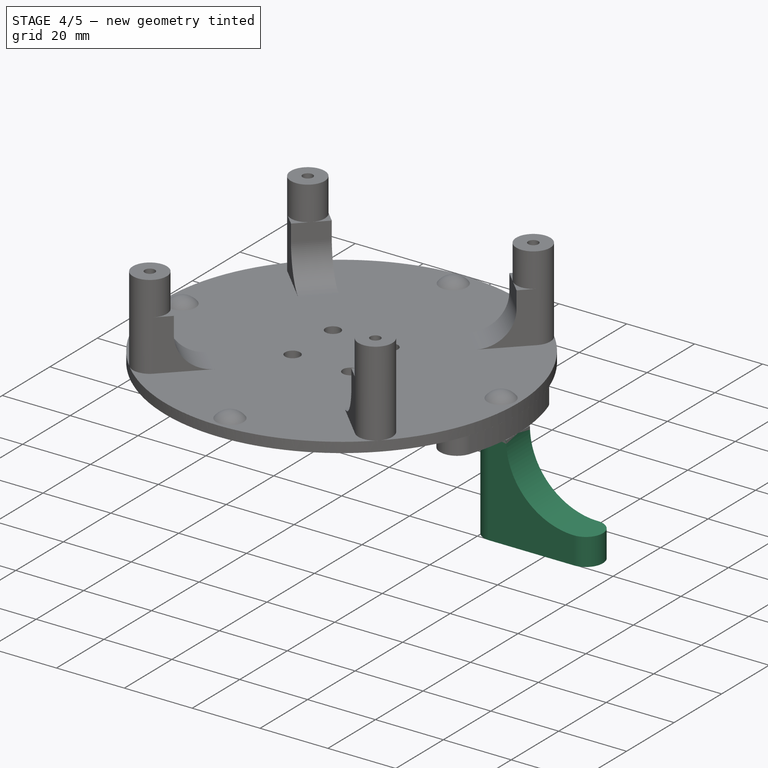
[diagram: stage 4 of 5 — iso view after this stage's code; geometry added in this stage tinted green]
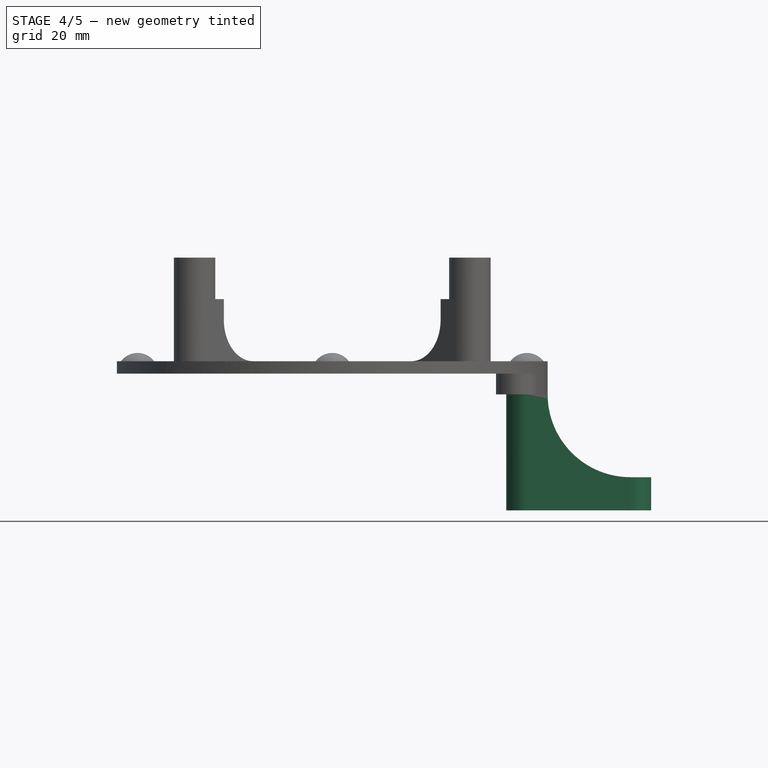
[diagram: stage 4 of 5 — front view after this stage's code; geometry added in this stage tinted green]
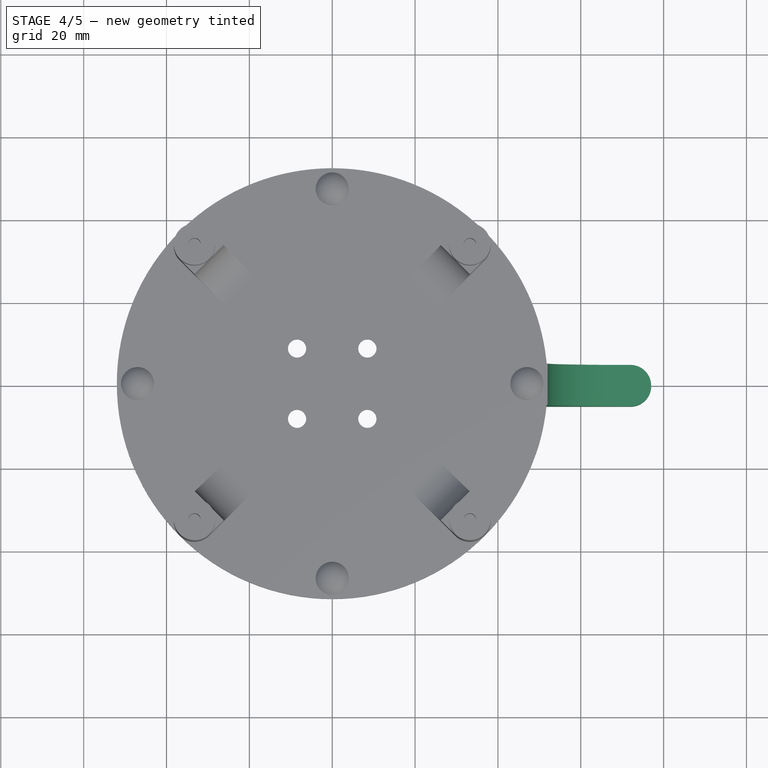
[diagram: stage 4 of 5 — top view after this stage's code; geometry added in this stage tinted green]
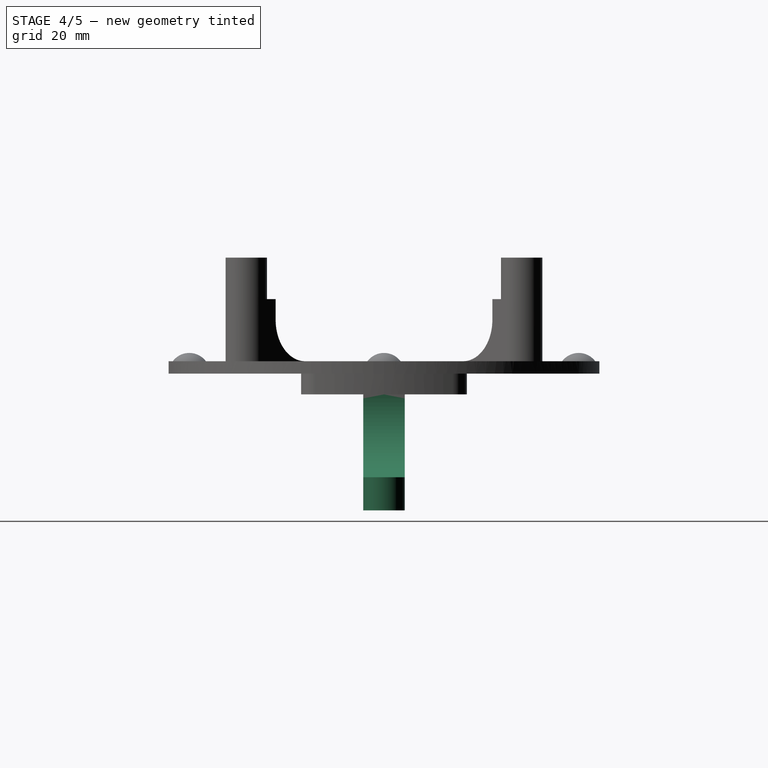
[diagram: stage 4 of 5 — right view after this stage's code; geometry added in this stage tinted green]
FEATURE [Sketcher::SketchObject] Sketch012
  ArcFitTolerance = 1e-06
  AttachmentSupport = -> [XY_Plane003]
  FullyConstrained = true
  MakeInternals = false
  MapMode = 5
  sketch-geometry (10):
    g0: Circle CenterX=0 CenterY=0 CenterZ=0 NormalX=0 NormalY=0 NormalZ=1 AngleXU=0 Radius=20
    g1: LineSegment [constr] StartX=-8.48528 StartY=8.48528 StartZ=0 EndX=-8.48528 EndY=-8.48528 EndZ=0
    g2: LineSegment [constr] StartX=-8.48528 StartY=-8.48528 StartZ=0 EndX=8.48528 EndY=-8.48528 EndZ=0
    g3: LineSegment [constr] StartX=8.48528 StartY=-8.48528 StartZ=0 EndX=8.48528 EndY=8.48528 EndZ=0
    g4: LineSegment [constr] StartX=8.48528 StartY=8.48528 StartZ=0 EndX=-8.48528 EndY=8.48528 EndZ=0
    g5: Circle [constr] CenterX=0 CenterY=0 CenterZ=0 NormalX=0 NormalY=0 NormalZ=1 AngleXU=0 Radius=12
    g6: Circle CenterX=-8.48528 CenterY=8.48528 CenterZ=0 NormalX=0 NormalY=0 NormalZ=1 AngleXU=0 Radius=2.2
    g7: Circle CenterX=8.48528 CenterY=8.48528 CenterZ=0 NormalX=0 NormalY=0 NormalZ=1 AngleXU=0 Radius=2.2
    g8: Circle CenterX=8.48528 CenterY=-8.48528 CenterZ=0 NormalX=0 NormalY=0 NormalZ=1 AngleXU=0 Radius=2.2
    g9: Circle CenterX=-8.48528 CenterY=-8.48528 CenterZ=0 NormalX=0 NormalY=0 NormalZ=1 AngleXU=0 Radius=2.2
  constraints (25):
    c: Radius(g0) = 20
    c: DistanceX(g0) = 0
    c: DistanceY(g0) = 0
    c: Coincident(g1,g2)
    c: Coincident(g2,g3)
    c: Coincident(g3,g4)
    c: Coincident(g4,g1)
    c: Equal(g1,g2)
    c: Equal(g1,g3)
    c: Equal(g1,g4)
    c: PointOnObject(g1,g5)
    c: PointOnObject(g2,g5)
    c: PointOnObject(g3,g5)
    c: PointOnObject(g4,g5)
    c: Coincident(g5,g0)
    c: Radius(g5) = 12
    c: Parallel(g4,g-1)
    c: Coincident(g6,g1)
    c: Coincident(g7,g3)
    c: Coincident(g8,g2)
    c: Coincident(g9,g1)
    c: Equal(g6,g7)
    c: Equal(g7,g8)
    c: Equal(g8,g9)
    c: Radius(g7) = 2.2
FEATURE [PartDesign::Pad] Pad005
  Direction = (0,0,1)
  Length = 3
  Length2 = 10
  Profile = -> Sketch012
  ReferenceAxis = -> Sketch012 [N_Axis]
  Suppressed = false
  Type = 0
FEATURE [Sketcher::SketchObject] Sketch015
  ArcFitTolerance = 1e-06
  AttachmentSupport = -> [XY_Plane004]
  FullyConstrained = true
  MakeInternals = false
  MapMode = 5
  sketch-geometry (2):
    g0: Circle CenterX=47 CenterY=-5e-16 CenterZ=0 NormalX=0 NormalY=0 NormalZ=1 AngleXU=0 Radius=5
    g1: LineSegment [constr] StartX=0 StartY=0 StartZ=0 EndX=47 EndY=-5e-16 EndZ=0
  constraints (5):
    c: Coincident(g1,g-1)
    c: Coincident(g1,g0)
    c: Distance(g1) = 47
    c: Angle(g-1,g1) = 0
    c: Radius(g0) = 5
FEATURE [PartDesign::Pad] Pad008
  BaseFeature = -> Pad007
  Direction = (0,0,1)
  Length = 33
  Length2 = 10
  Profile = -> Sketch015
  ReferenceAxis = -> Sketch015 [N_Axis]
  Reversed = true
  Suppressed = false
  Type = 0
FEATURE [Sketcher::SketchObject] Sketch016
  ArcFitTolerance = 1e-06
  AttachmentSupport = -> [XZ_Plane004]
  FullyConstrained = true
  MakeInternals = false
  MapMode = 5
  Placement = pos=(0,0,0) rot=(1,0,0;1.5708rad)
  sketch-geometry (5):
    g0: LineSegment StartX=47 StartY=-5 StartZ=0 EndX=47 EndY=-33 EndZ=0
    g1: LineSegment StartX=47 StartY=-33 StartZ=0 EndX=72 EndY=-33 EndZ=0
    g2: LineSegment StartX=72 StartY=-33 StartZ=0 EndX=72 EndY=-25 EndZ=0
    g3: LineSegment StartX=52 StartY=-5 StartZ=0 EndX=47 EndY=-5 EndZ=0
    g4: ArcOfCircle CenterX=72 CenterY=-5 CenterZ=0 NormalX=0 NormalY=0 NormalZ=1 AngleXU=0 Radius=20 StartAngle=3.14159 EndAngle=4.71239
  constraints (16):
    c: Coincident(g0,g1)
    c: Coincident(g1,g2)
    c: Coincident(g3,g0)
    c: Vertical(g0)
    c: Vertical(g2)
    c: Horizontal(g1)
    c: Horizontal(g3)
    c: Coincident(g4,g3)
    c: Coincident(g4,g2)
    c: DistanceX(g0) = 47
    c: DistanceY(g0) = -5
    c: DistanceY(g0,g-1) = 33
    c: DistanceX(g3,g3) = 5
    c: DistanceX(g1,g1) = 25
    c: DistanceX(g4,g2) = 0
    c: DistanceY(g3,g4) = 0
FEATURE [PartDesign::Pad] Pad009
  BaseFeature = -> Pad008
  Direction = (0,-1,2e-16)
  Length = 10
  Length2 = 10
  Midplane = true
  Profile = -> Sketch016
  ReferenceAxis = -> Sketch016 [N_Axis]
  Suppressed = false
  Type = 0
FEATURE [Sketcher::SketchObject] Sketch017
  ArcFitTolerance = 1e-06
  AttachmentOffset = pos=(0,0,-33) rot=(0,0,1;0rad)
  AttachmentSupport = -> [XY_Plane004]
  FullyConstrained = true
  MakeInternals = false
  MapMode = 5
  Placement = pos=(0,0,-33) rot=(0,0,1;0rad)
  sketch-geometry (2):
    g0: ArcOfCircle CenterX=72 CenterY=0 CenterZ=0 NormalX=0 NormalY=0 NormalZ=1 AngleXU=0 Radius=5 StartAngle=4.71239 EndAngle=7.85398
    g1: LineSegment StartX=72 StartY=5 StartZ=0 EndX=72 EndY=-5 EndZ=0
  constraints (7):
    c: PointOnObject(g0,g-1)
    c: Coincident(g1,g0)
    c: Coincident(g1,g0)
    c: Vertical(g1)
    c: Radius(g0) = 5
    c: DistanceX(g0,g0) = 0
    c: DistanceX(g-1,g0) = 72
FEATURE [PartDesign::Pad] Pad010
  BaseFeature = -> Pad009
  Direction = (0,0,1)
  Length = 8
  Length2 = 10
  Profile = -> Sketch017
  ReferenceAxis = -> Sketch017 [N_Axis]
  Suppressed = false
  Type = 0
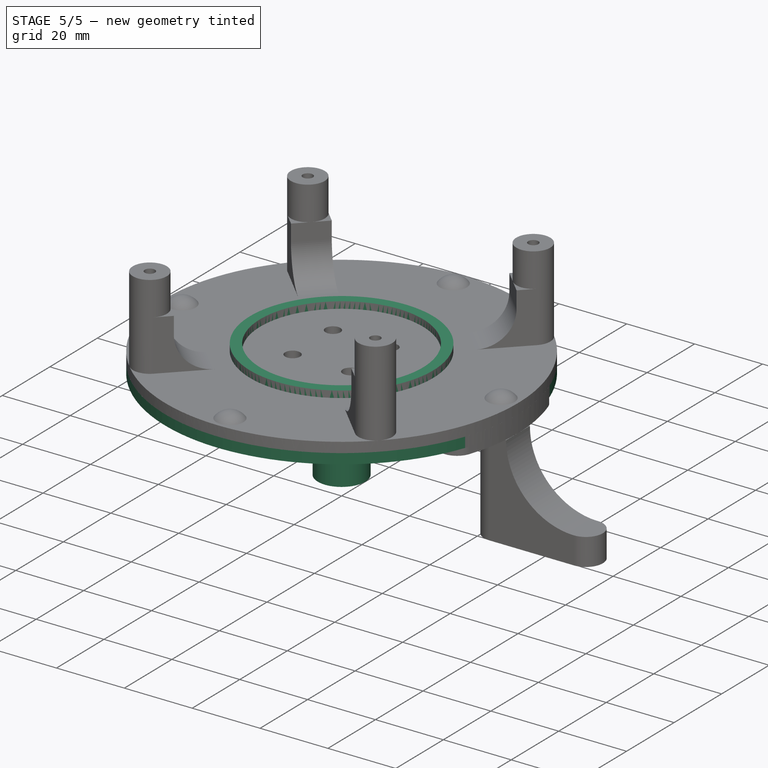
[diagram: stage 5 of 5 — iso view after this stage's code; geometry added in this stage tinted green]
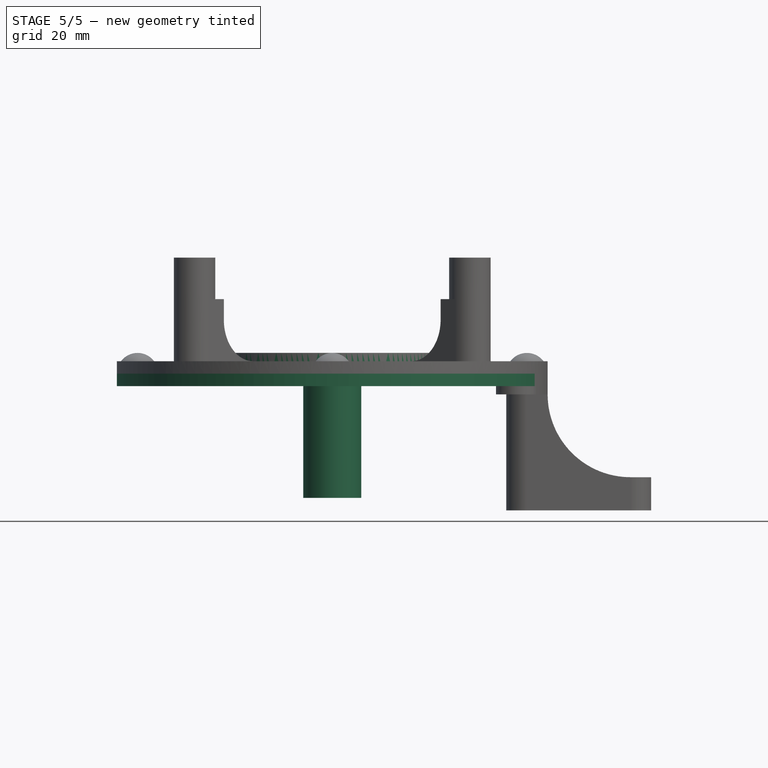
[diagram: stage 5 of 5 — front view after this stage's code; geometry added in this stage tinted green]
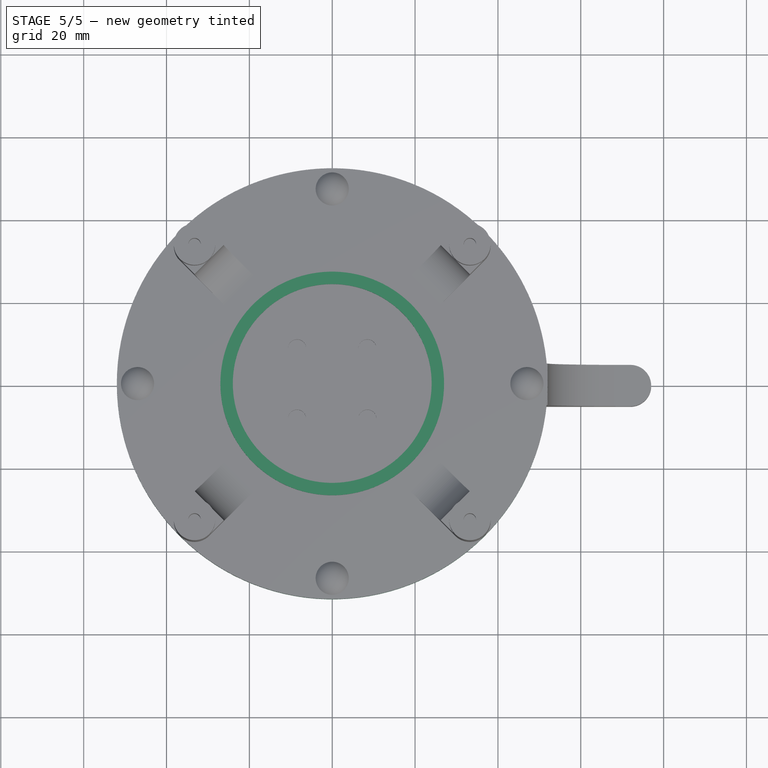
[diagram: stage 5 of 5 — top view after this stage's code; geometry added in this stage tinted green]
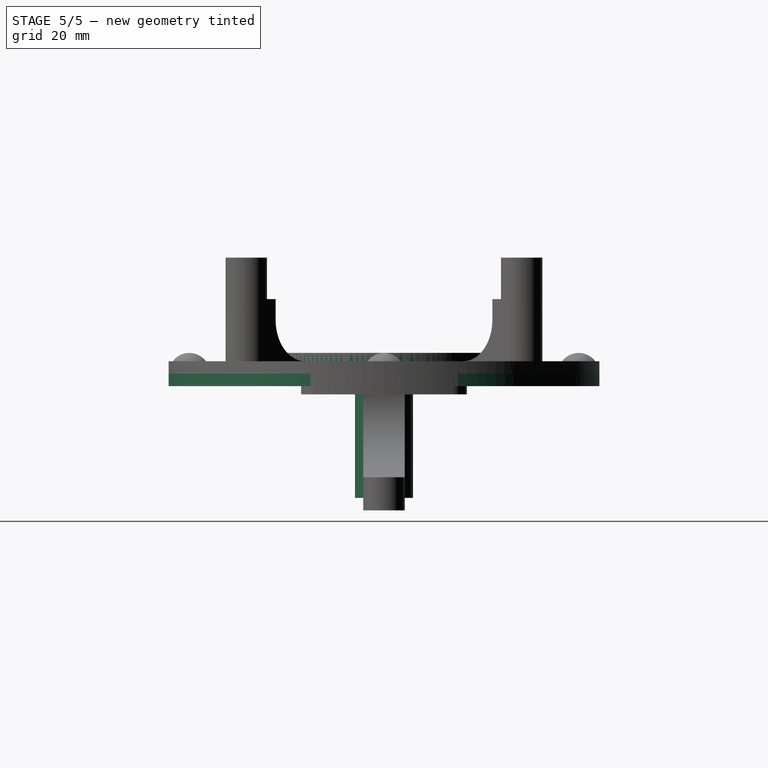
[diagram: stage 5 of 5 — right view after this stage's code; geometry added in this stage tinted green]
FEATURE [Sketcher::SketchObject] Sketch001
  ArcFitTolerance = 1e-06
  AttachmentSupport = -> [XY_Plane]
  FullyConstrained = true
  MakeInternals = false
  MapMode = 5
  sketch-geometry (2):
    g0: Circle CenterX=0 CenterY=0 CenterZ=0 NormalX=0 NormalY=0 NormalZ=1 AngleXU=0 Radius=52
    g1: Circle CenterX=0 CenterY=0 CenterZ=0 NormalX=0 NormalY=0 NormalZ=1 AngleXU=0 Radius=1.6
  constraints (4):
    c: Coincident(g0,g-1)
    c: Radius(g0) = 52
    c: Coincident(g1,g0)
    c: Radius(g1) = 1.6
FEATURE [PartDesign::Pad] Pad001
  Direction = (0,0,1)
  Length = 3
  Length2 = 10
  Profile = -> Sketch001
  ReferenceAxis = -> Sketch001 [N_Axis]
  Reversed = true
  Suppressed = false
  Type = 0
FEATURE [Sketcher::SketchObject] Sketch
  ArcFitTolerance = 1e-06
  AttachmentSupport = -> [XY_Plane]
  FullyConstrained = true
  MakeInternals = false
  MapMode = 5
  sketch-geometry (2):
    g0: Circle CenterX=0 CenterY=0 CenterZ=0 NormalX=0 NormalY=0 NormalZ=1 AngleXU=0 Radius=24
    g1: Circle CenterX=0 CenterY=0 CenterZ=0 NormalX=0 NormalY=0 NormalZ=1 AngleXU=0 Radius=27
  constraints (4):
    c: Coincident(g0,g-1)
    c: Coincident(g1,g0)
    c: Radius(g1) = 27
    c: Radius(g0) = 24
FEATURE [PartDesign::Pad] Pad
  BaseFeature = -> Pad001
  Direction = (0,0,1)
  Length = 5
  Length2 = 10
  Profile = -> Sketch
  ReferenceAxis = -> Sketch [N_Axis]
  Suppressed = false
  Type = 0
FEATURE [Sketcher::SketchObject] Sketch002
  ArcFitTolerance = 1e-06
  AttachmentSupport = -> [XY_Plane]
  FullyConstrained = true
  MakeInternals = false
  MapMode = 5
  sketch-geometry (9):
    g0: LineSegment [constr] StartX=-5.65685 StartY=5.65685 StartZ=0 EndX=-5.65685 EndY=-5.65685 EndZ=0
    g1: LineSegment [constr] StartX=-5.65685 StartY=-5.65685 StartZ=0 EndX=5.65685 EndY=-5.65685 EndZ=0
    g2: LineSegment [constr] StartX=5.65685 StartY=-5.65685 StartZ=0 EndX=5.65685 EndY=5.65685 EndZ=0
    g3: LineSegment [constr] StartX=5.65685 StartY=5.65685 StartZ=0 EndX=-5.65685 EndY=5.65685 EndZ=0
    g4: Circle [constr] CenterX=0 CenterY=0 CenterZ=0 NormalX=0 NormalY=0 NormalZ=1 AngleXU=0 Radius=8
    g5: Circle CenterX=5.65685 CenterY=5.65685 CenterZ=0 NormalX=0 NormalY=0 NormalZ=1 AngleXU=0 Radius=1.8
    g6: Circle CenterX=-5.65685 CenterY=5.65685 CenterZ=0 NormalX=0 NormalY=0 NormalZ=1 AngleXU=0 Radius=1.8
    g7: Circle CenterX=-5.65685 CenterY=-5.65685 CenterZ=0 NormalX=0 NormalY=0 NormalZ=1 AngleXU=0 Radius=1.8
    g8: Circle CenterX=5.65685 CenterY=-5.65685 CenterZ=0 NormalX=0 NormalY=0 NormalZ=1 AngleXU=0 Radius=1.8
  constraints (22):
    c: Coincident(g0,g1)
    c: Coincident(g1,g2)
    c: Coincident(g2,g3)
    c: Coincident(g3,g0)
    c: Equal(g0,g1)
    c: Equal(g0,g2)
    c: Equal(g0,g3)
    c: PointOnObject(g0,g4)
    c: PointOnObject(g1,g4)
    c: PointOnObject(g2,g4)
    c: PointOnObject(g3,g4)
    c: Coincident(g4,g-1)
    c: Radius(g4) = 8
    c: Parallel(g3,g-1)
    c: Coincident(g5,g2)
    c: Coincident(g6,g0)
    c: Coincident(g7,g0)
    c: Coincident(g8,g1)
    c: Equal(g8,g5)
    c: Equal(g5,g6)
    c: Equal(g6,g7)
    c: Radius(g5) = 1.8
FEATURE [PartDesign::Pocket] Pocket
  BaseFeature = -> Pad
  Direction = (0,0,-1)
  Length = 5
  Length2 = 5
  Profile = -> Sketch002
  ReferenceAxis = -> Sketch002 [N_Axis]
  Suppressed = false
  Type = 0
FEATURE [Sketcher::SketchObject] Sketch013
  ArcFitTolerance = 1e-06
  AttachmentSupport = -> [XY_Plane003]
  FullyConstrained = true
  MakeInternals = false
  MapMode = 5
  sketch-geometry (2):
    g0: Circle CenterX=0 CenterY=0 CenterZ=0 NormalX=0 NormalY=0 NormalZ=1 AngleXU=0 Radius=7
    g1: Circle CenterX=0 CenterY=0 CenterZ=0 NormalX=0 NormalY=0 NormalZ=1 AngleXU=0 Radius=3
  constraints (4):
    c: Coincident(g0,g-1)
    c: Radius(g0) = 7
    c: Coincident(g1,g0)
    c: Radius(g1) = 3
FEATURE [PartDesign::Pad] Pad006
  BaseFeature = -> Pad005
  Direction = (0,0,1)
  Length = 30
  Length2 = 10
  Profile = -> Sketch013
  ReferenceAxis = -> Sketch013 [N_Axis]
  Reversed = true
  Suppressed = false
  Type = 0
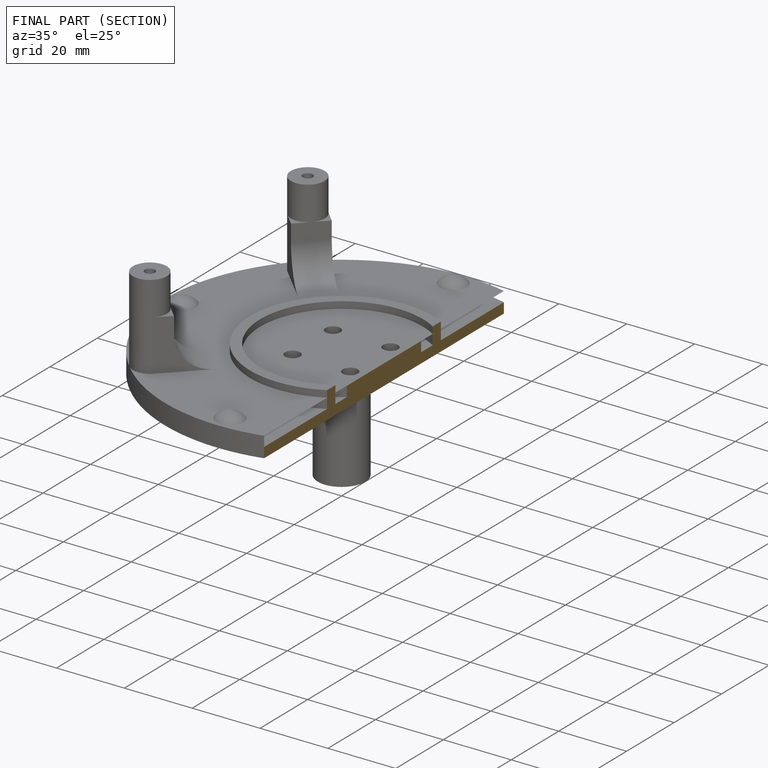
[diagram: finished part — half-section view (interior)]
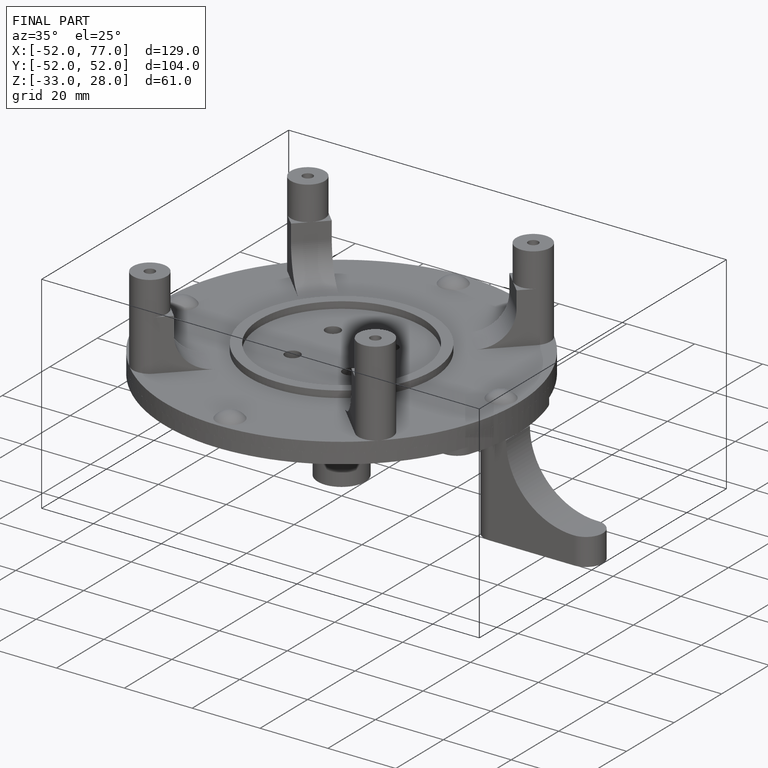
[diagram: finished part — iso view with bounding-box wireframe]
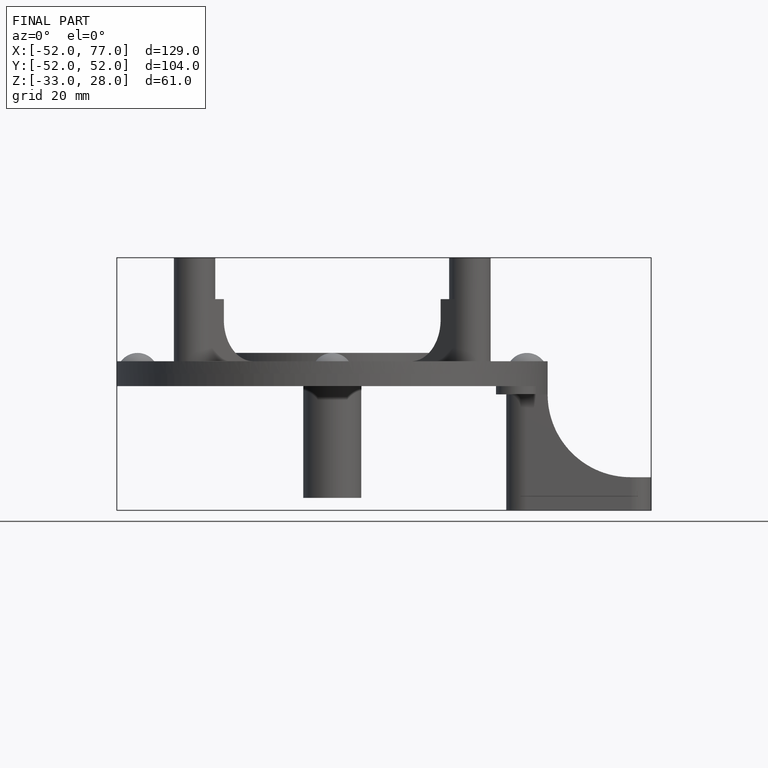
[diagram: finished part — front view with bounding-box wireframe]
